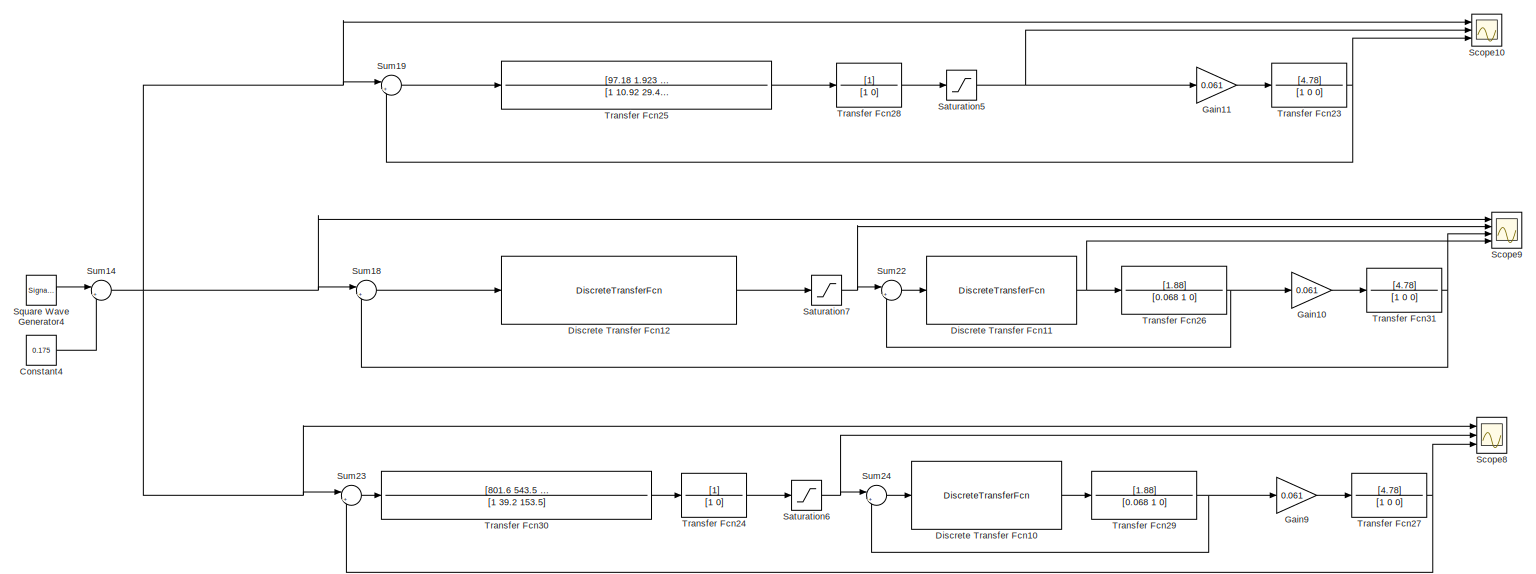
[diagram: root canvas - part 1/5, full width, top band]
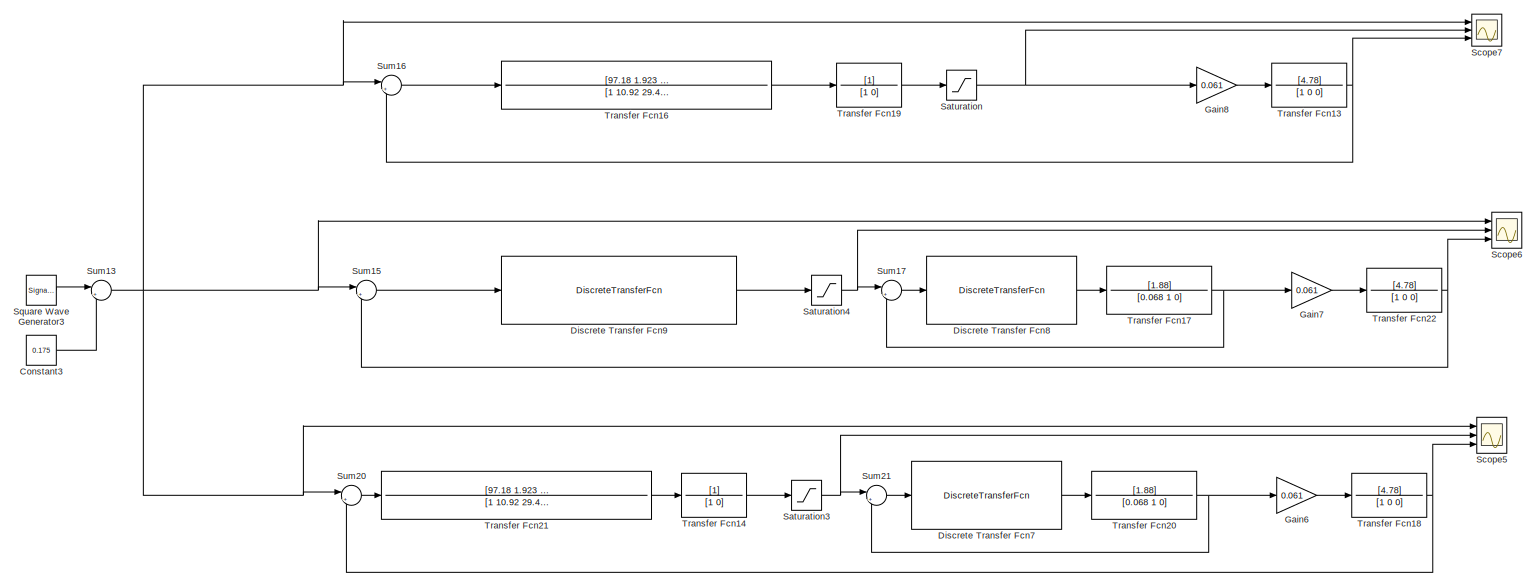
[diagram: root canvas - part 2/5, full width, middle band]
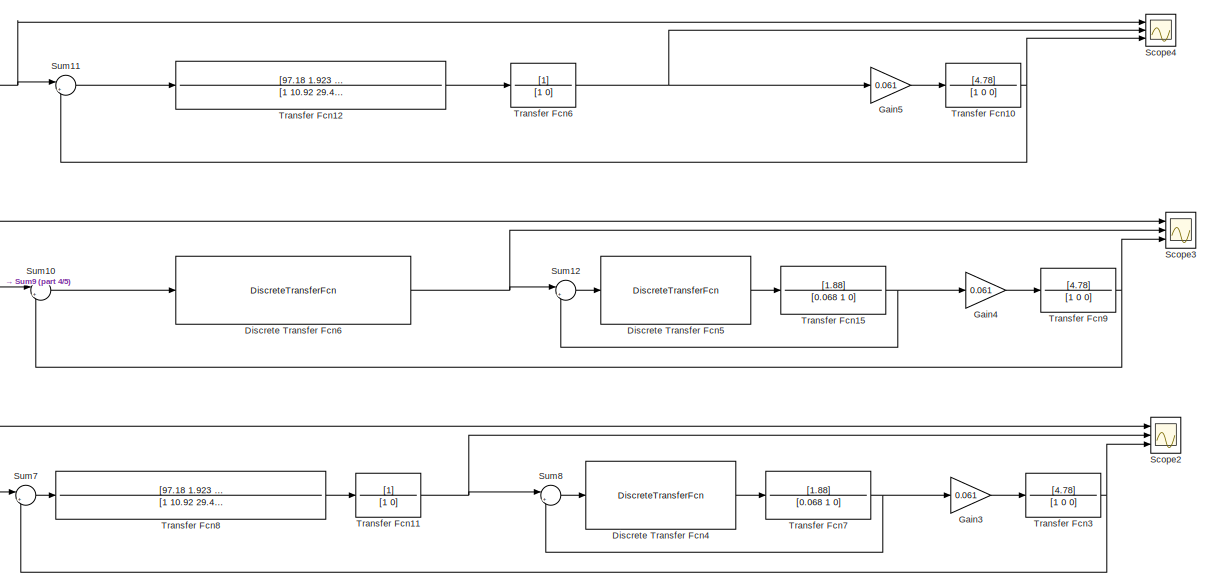
[diagram: root canvas - part 3/5, bottom center region]
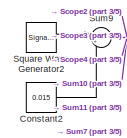
[diagram: root canvas - part 4/5, bottom left region]
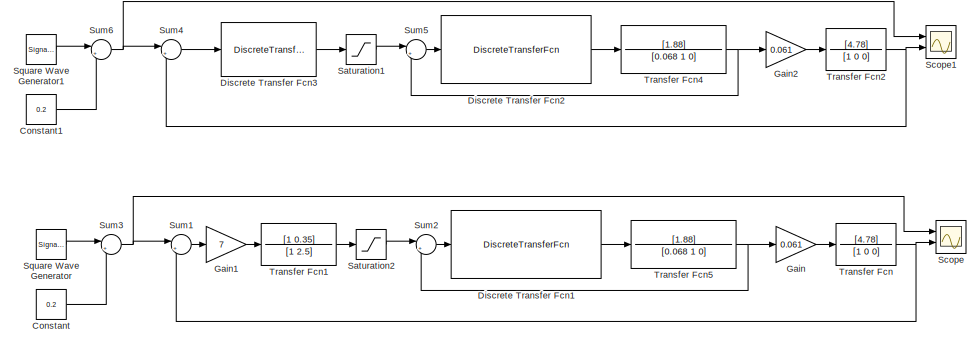
[diagram: root canvas - part 5/5, bottom center region]
MODEL slx_eb21d4040b31
KIND model
CONFIG AbsTol = auto
CONFIG EnableMultiTasking = off
CONFIG FixedStep = auto
CONFIG MaxStep = auto
CONFIG MinStep = auto
CONFIG RelTol = 1e-3
CONFIG SampleTimeConstraint = Unconstrained
CONFIG Solver = VariableStepAuto
CONFIG SolverName = VariableStepAuto
CONFIG StartTime = 0.0
CONFIG StopTime = 100
BLOCK [Constant] Constant
  Value = 0.2
BLOCK [Constant] Constant1
  Value = 0.2
BLOCK [Constant] Constant2
  Value = 0.015
BLOCK [Constant] Constant3
  Value = 0.175
BLOCK [Constant] Constant4
  Value = 0.175
BLOCK [DiscreteTransferFcn] Discrete Transfer Fcn1
  Denominator = [1 -0.1333 0.03625]
  InputPortMap = u0
  Numerator = [2.619 1.281 -1.255]
  Ports = [1, 1]
  SampleTime = 0.029012
BLOCK [DiscreteTransferFcn] Discrete Transfer Fcn10
  Denominator = [1 -0.1333 0.03625]
  InputPortMap = u0
  Numerator = [2.619 1.281 -1.255]
  Ports = [1, 1]
  SampleTime = 0.029012
BLOCK [DiscreteTransferFcn] Discrete Transfer Fcn11
  Denominator = [1 -0.1333 0.03625]
  InputPortMap = u0
  Numerator = [2.619 1.281 -1.255]
  Ports = [1, 1]
  SampleTime = 0.029012
BLOCK [DiscreteTransferFcn] Discrete Transfer Fcn12
  Denominator = [1 -2.301 1.754 -0.4527]
  InputPortMap = u0
  Numerator = [33.86 -32.81 -33.85 32.82]
  Ports = [1, 1]
  SampleTime = 0.029012
BLOCK [DiscreteTransferFcn] Discrete Transfer Fcn2
  Denominator = [1 -0.1333 0.03625]
  InputPortMap = u0
  Numerator = [2.619 1.281 -1.255]
  Ports = [1, 1]
  SampleTime = 0.029012
BLOCK [DiscreteTransferFcn] Discrete Transfer Fcn3
  Denominator = [1 -0.6634]
  InputPortMap = u0
  Numerator = [5.987 -5.657]
  Ports = [1, 1]
  SampleTime = 0.16186
BLOCK [DiscreteTransferFcn] Discrete Transfer Fcn4
  Denominator = [1 -0.1333 0.03625]
  InputPortMap = u0
  Numerator = [2.619 1.281 -1.255]
  Ports = [1, 1]
  SampleTime = 0.029012
BLOCK [DiscreteTransferFcn] Discrete Transfer Fcn5
  Denominator = [1 -0.1333 0.03625]
  InputPortMap = u0
  Numerator = [2.619 1.281 -1.255]
  Ports = [1, 1]
  SampleTime = 0.029012
BLOCK [DiscreteTransferFcn] Discrete Transfer Fcn6
  Denominator = [1 -2.707 2.435 -0.728]
  InputPortMap = u0
  Numerator = [1.211 -1.21 -1.211 1.21]
  Ports = [1, 1]
  SampleTime = 0.029012
BLOCK [DiscreteTransferFcn] Discrete Transfer Fcn7
  Denominator = [1 -0.1333 0.03625]
  InputPortMap = u0
  Numerator = [2.619 1.281 -1.255]
  Ports = [1, 1]
  SampleTime = 0.029012
BLOCK [DiscreteTransferFcn] Discrete Transfer Fcn8
  Denominator = [1 -0.1333 0.03625]
  InputPortMap = u0
  Numerator = [2.619 1.281 -1.255]
  Ports = [1, 1]
  SampleTime = 0.029012
BLOCK [DiscreteTransferFcn] Discrete Transfer Fcn9
  Denominator = [1 -2.707 2.435 -0.728]
  InputPortMap = u0
  Numerator = [1.211 -1.21 -1.211 1.21]
  Ports = [1, 1]
  SampleTime = 0.029012
BLOCK [Gain] Gain
  Gain = 0.061
  OutDataTypeStr = Inherit: Inherit via internal rule
  ParamDataTypeStr = Inherit: Inherit via internal rule
  SaturateOnIntegerOverflow = off
BLOCK [Gain] Gain1
  Gain = 7
  OutDataTypeStr = Inherit: Inherit via internal rule
  ParamDataTypeStr = Inherit: Inherit via internal rule
  SaturateOnIntegerOverflow = off
BLOCK [Gain] Gain10
  Gain = 0.061
  OutDataTypeStr = Inherit: Inherit via internal rule
  ParamDataTypeStr = Inherit: Inherit via internal rule
  SaturateOnIntegerOverflow = off
BLOCK [Gain] Gain11
  Gain = 0.061
  OutDataTypeStr = Inherit: Inherit via internal rule
  ParamDataTypeStr = Inherit: Inherit via internal rule
  SaturateOnIntegerOverflow = off
BLOCK [Gain] Gain2
  Gain = 0.061
  OutDataTypeStr = Inherit: Inherit via internal rule
  ParamDataTypeStr = Inherit: Inherit via internal rule
  SaturateOnIntegerOverflow = off
BLOCK [Gain] Gain3
  Gain = 0.061
  OutDataTypeStr = Inherit: Inherit via internal rule
  ParamDataTypeStr = Inherit: Inherit via internal rule
  SaturateOnIntegerOverflow = off
BLOCK [Gain] Gain4
  Gain = 0.061
  OutDataTypeStr = Inherit: Inherit via internal rule
  ParamDataTypeStr = Inherit: Inherit via internal rule
  SaturateOnIntegerOverflow = off
BLOCK [Gain] Gain5
  Gain = 0.061
  OutDataTypeStr = Inherit: Inherit via internal rule
  ParamDataTypeStr = Inherit: Inherit via internal rule
  SaturateOnIntegerOverflow = off
BLOCK [Gain] Gain6
  Gain = 0.061
  OutDataTypeStr = Inherit: Inherit via internal rule
  ParamDataTypeStr = Inherit: Inherit via internal rule
  SaturateOnIntegerOverflow = off
BLOCK [Gain] Gain7
  Gain = 0.061
  OutDataTypeStr = Inherit: Inherit via internal rule
  ParamDataTypeStr = Inherit: Inherit via internal rule
  SaturateOnIntegerOverflow = off
BLOCK [Gain] Gain8
  Gain = 0.061
  OutDataTypeStr = Inherit: Inherit via internal rule
  ParamDataTypeStr = Inherit: Inherit via internal rule
  SaturateOnIntegerOverflow = off
BLOCK [Gain] Gain9
  Gain = 0.061
  OutDataTypeStr = Inherit: Inherit via internal rule
  ParamDataTypeStr = Inherit: Inherit via internal rule
  SaturateOnIntegerOverflow = off
BLOCK [Saturate] Saturation
  InputPortMap = u0
  LowerLimit = -0.7
  Ports = [1, 1]
  UpperLimit = 0.7
BLOCK [Saturate] Saturation1
  InputPortMap = u0
  LowerLimit = -0.7
  Ports = [1, 1]
  UpperLimit = 0.7
BLOCK [Saturate] Saturation2
  InputPortMap = u0
  LowerLimit = -0.7
  Ports = [1, 1]
  UpperLimit = 0.7
BLOCK [Saturate] Saturation3
  InputPortMap = u0
  LowerLimit = -0.7
  Ports = [1, 1]
  UpperLimit = 0.7
BLOCK [Saturate] Saturation4
  InputPortMap = u0
  LowerLimit = -0.7
  Ports = [1, 1]
  UpperLimit = 0.7
BLOCK [Saturate] Saturation5
  InputPortMap = u0
  LowerLimit = -0.7
  Ports = [1, 1]
  UpperLimit = 0.7
BLOCK [Saturate] Saturation6
  InputPortMap = u0
  LowerLimit = -0.7
  Ports = [1, 1]
  UpperLimit = 0.7
BLOCK [Saturate] Saturation7
  InputPortMap = u0
  LowerLimit = -0.7
  Ports = [1, 1]
  UpperLimit = 0.7
BLOCK [Scope] Scope
  Floating = off
  NumInputPorts = 2
  Ports = [2]
  ScopeSpecificationString = Simulink.scopes.TimeScopeBlockCfg('CurrentConfiguration', extmgr.ConfigurationSet(extmgr.Configuration('Core','General UI',true),extmgr.Configuration('Core','Source UI',true),extmgr.Configuration('Sources','WiredSimulink',true),extmgr.Configuration('Visuals','Time Domain',true,'SerializedDisplays',{struct('MinYLimReal','-0.03611','MaxYLimReal','0.32496','YLabelReal','','MinYLimMag','0.00000','MaxY...<+1394ch>
BLOCK [Scope] Scope1
  Floating = off
  NumInputPorts = 2
  Ports = [2]
  ScopeSpecificationString = Simulink.scopes.TimeScopeBlockCfg('CurrentConfiguration', extmgr.ConfigurationSet(extmgr.Configuration('Core','General UI',true),extmgr.Configuration('Core','Source UI',true),extmgr.Configuration('Sources','WiredSimulink',true,'DataLoggingVariableName','ScopeData1'),extmgr.Configuration('Visuals','Time Domain',true,'SerializedDisplays',{struct('MinYLimReal','-0.03699','MaxYLimReal','0.33295','YLab...<+1408ch>
BLOCK [Scope] Scope10
  Floating = off
  NumInputPorts = 3
  Ports = [3]
  ScopeSpecificationString = Simulink.scopes.TimeScopeBlockCfg('CurrentConfiguration', extmgr.ConfigurationSet(extmgr.Configuration('Core','General UI',true),extmgr.Configuration('Core','Source UI',true),extmgr.Configuration('Sources','WiredSimulink',true,'DataLoggingVariableName','ScopeData8'),extmgr.Configuration('Visuals','Time Domain',true,'SerializedDisplays',{struct('MinYLimReal','-0.875','MaxYLimReal','0.875','YLabelRe...<+1456ch>
BLOCK [Scope] Scope2
  Floating = off
  NumInputPorts = 3
  Ports = [3]
  ScopeSpecificationString = Simulink.scopes.TimeScopeBlockCfg('CurrentConfiguration', extmgr.ConfigurationSet(extmgr.Configuration('Core','General UI',true),extmgr.Configuration('Core','Source UI',true),extmgr.Configuration('Sources','WiredSimulink',true,'DataLoggingVariableName','ScopeData2'),extmgr.Configuration('Visuals','Time Domain',true,'SerializedDisplays',{struct('MinYLimReal','-0.54499','MaxYLimReal','0.84627','YLab...<+1495ch>
BLOCK [Scope] Scope3
  Floating = off
  NumInputPorts = 3
  Ports = [3]
  ScopeSpecificationString = Simulink.scopes.TimeScopeBlockCfg('CurrentConfiguration', extmgr.ConfigurationSet(extmgr.Configuration('Core','General UI',true),extmgr.Configuration('Core','Source UI',true),extmgr.Configuration('Sources','WiredSimulink',true,'DataLoggingVariableName','ScopeData3'),extmgr.Configuration('Visuals','Time Domain',true,'SerializedDisplays',{struct('MinYLimReal','-0.24764','MaxYLimReal','0.24764','YLab...<+1478ch>
BLOCK [Scope] Scope4
  Floating = off
  NumInputPorts = 3
  Ports = [3]
  ScopeSpecificationString = Simulink.scopes.TimeScopeBlockCfg('CurrentConfiguration', extmgr.ConfigurationSet(extmgr.Configuration('Core','General UI',true),extmgr.Configuration('Core','Source UI',true),extmgr.Configuration('Sources','WiredSimulink',true,'DataLoggingVariableName','ScopeData4'),extmgr.Configuration('Visuals','Time Domain',true,'SerializedDisplays',{struct('MinYLimReal','-0.24452','MaxYLimReal','0.24434','YLab...<+1470ch>
BLOCK [Scope] Scope5
  Floating = off
  NumInputPorts = 3
  Ports = [3]
  ScopeSpecificationString = Simulink.scopes.TimeScopeBlockCfg('CurrentConfiguration', extmgr.ConfigurationSet(extmgr.Configuration('Core','General UI',true),extmgr.Configuration('Core','Source UI',true),extmgr.Configuration('Sources','WiredSimulink',true,'DataLoggingVariableName','ScopeData5'),extmgr.Configuration('Visuals','Time Domain',true,'SerializedDisplays',{struct('MinYLimReal','-0.54499','MaxYLimReal','0.84627','YLab...<+1495ch>
BLOCK [Scope] Scope6
  Floating = off
  NumInputPorts = 3
  Ports = [3]
  ScopeSpecificationString = Simulink.scopes.TimeScopeBlockCfg('CurrentConfiguration', extmgr.ConfigurationSet(extmgr.Configuration('Core','General UI',true),extmgr.Configuration('Core','Source UI',true),extmgr.Configuration('Sources','WiredSimulink',true,'DataLoggingVariableName','ScopeData6'),extmgr.Configuration('Visuals','Time Domain',true,'SerializedDisplays',{struct('MinYLimReal','-1.2382','MaxYLimReal','1.23822','YLabe...<+1467ch>
BLOCK [Scope] Scope7
  Floating = off
  NumInputPorts = 3
  Ports = [3]
  ScopeSpecificationString = Simulink.scopes.TimeScopeBlockCfg('CurrentConfiguration', extmgr.ConfigurationSet(extmgr.Configuration('Core','General UI',true),extmgr.Configuration('Core','Source UI',true),extmgr.Configuration('Sources','WiredSimulink',true,'DataLoggingVariableName','ScopeData7'),extmgr.Configuration('Visuals','Time Domain',true,'SerializedDisplays',{struct('MinYLimReal','-0.875','MaxYLimReal','0.875','YLabelRe...<+1456ch>
BLOCK [Scope] Scope8
  Floating = off
  NumInputPorts = 3
  Ports = [3]
  ScopeSpecificationString = Simulink.scopes.TimeScopeBlockCfg('CurrentConfiguration', extmgr.ConfigurationSet(extmgr.Configuration('Core','General UI',true),extmgr.Configuration('Core','Source UI',true),extmgr.Configuration('Sources','WiredSimulink',true,'DataLoggingVariableName','ScopeData9'),extmgr.Configuration('Visuals','Time Domain',true,'SerializedDisplays',{struct('MinYLimReal','-0.875','MaxYLimReal','0.875','YLabelRe...<+1482ch>
BLOCK [Scope] Scope9
  Floating = off
  NumInputPorts = 4
  Ports = [4]
  ScopeSpecificationString = Simulink.scopes.TimeScopeBlockCfg('CurrentConfiguration', extmgr.ConfigurationSet(extmgr.Configuration('Core','General UI',true),extmgr.Configuration('Core','Source UI',true),extmgr.Configuration('Sources','WiredSimulink',true,'DataLoggingVariableName','ScopeData10'),extmgr.Configuration('Visuals','Time Domain',true,'SerializedDisplays',{struct('MinYLimReal','-0.76936','MaxYLimReal','1.48896','YLa...<+1496ch>
BLOCK [SignalGenerator] Square Wave Generator
  Amplitude = 0.05
  Frequency = 0.2
  Ports = [0, 1]
  Units = rad/sec
  WaveForm = square
BLOCK [SignalGenerator] Square Wave Generator1
  Amplitude = 0.05
  Frequency = 0.2
  Ports = [0, 1]
  Units = rad/sec
  WaveForm = square
BLOCK [SignalGenerator] Square Wave Generator2
  Amplitude = 0.015
  Frequency = 0.2
  Ports = [0, 1]
  Units = rad/sec
  WaveForm = square
BLOCK [SignalGenerator] Square Wave Generator3
  Amplitude = 0.075
  Frequency = 0.2
  Ports = [0, 1]
  Units = rad/sec
  WaveForm = square
BLOCK [SignalGenerator] Square Wave Generator4
  Amplitude = 0.075
  Frequency = 0.2
  Ports = [0, 1]
  Units = rad/sec
  WaveForm = square
BLOCK [Sum] Sum1
  IconShape = round
  InputSameDT = off
  Inputs = |+-
  OutDataTypeStr = Inherit: Inherit via internal rule
  Ports = [2, 1]
  SaturateOnIntegerOverflow = off
BLOCK [Sum] Sum10
  IconShape = round
  InputSameDT = off
  Inputs = |+-
  OutDataTypeStr = Inherit: Inherit via internal rule
  Ports = [2, 1]
  SaturateOnIntegerOverflow = off
BLOCK [Sum] Sum11
  IconShape = round
  InputSameDT = off
  Inputs = |+-
  OutDataTypeStr = Inherit: Inherit via internal rule
  Ports = [2, 1]
  SaturateOnIntegerOverflow = off
BLOCK [Sum] Sum12
  IconShape = round
  InputSameDT = off
  Inputs = |+-
  OutDataTypeStr = Inherit: Inherit via internal rule
  Ports = [2, 1]
  SaturateOnIntegerOverflow = off
BLOCK [Sum] Sum13
  IconShape = round
  InputSameDT = off
  Inputs = |++
  OutDataTypeStr = Inherit: Inherit via internal rule
  Ports = [2, 1]
  SaturateOnIntegerOverflow = off
BLOCK [Sum] Sum14
  IconShape = round
  InputSameDT = off
  Inputs = |++
  OutDataTypeStr = Inherit: Inherit via internal rule
  Ports = [2, 1]
  SaturateOnIntegerOverflow = off
BLOCK [Sum] Sum15
  IconShape = round
  InputSameDT = off
  Inputs = |+-
  OutDataTypeStr = Inherit: Inherit via internal rule
  Ports = [2, 1]
  SaturateOnIntegerOverflow = off
BLOCK [Sum] Sum16
  IconShape = round
  InputSameDT = off
  Inputs = |+-
  OutDataTypeStr = Inherit: Inherit via internal rule
  Ports = [2, 1]
  SaturateOnIntegerOverflow = off
BLOCK [Sum] Sum17
  IconShape = round
  InputSameDT = off
  Inputs = |+-
  OutDataTypeStr = Inherit: Inherit via internal rule
  Ports = [2, 1]
  SaturateOnIntegerOverflow = off
BLOCK [Sum] Sum18
  IconShape = round
  InputSameDT = off
  Inputs = |+-
  OutDataTypeStr = Inherit: Inherit via internal rule
  Ports = [2, 1]
  SaturateOnIntegerOverflow = off
BLOCK [Sum] Sum19
  IconShape = round
  InputSameDT = off
  Inputs = |+-
  OutDataTypeStr = Inherit: Inherit via internal rule
  Ports = [2, 1]
  SaturateOnIntegerOverflow = off
BLOCK [Sum] Sum2
  IconShape = round
  InputSameDT = off
  Inputs = |+-
  OutDataTypeStr = Inherit: Inherit via internal rule
  Ports = [2, 1]
  SaturateOnIntegerOverflow = off
BLOCK [Sum] Sum20
  IconShape = round
  InputSameDT = off
  Inputs = |+-
  OutDataTypeStr = Inherit: Inherit via internal rule
  Ports = [2, 1]
  SaturateOnIntegerOverflow = off
BLOCK [Sum] Sum21
  IconShape = round
  InputSameDT = off
  Inputs = |+-
  OutDataTypeStr = Inherit: Inherit via internal rule
  Ports = [2, 1]
  SaturateOnIntegerOverflow = off
BLOCK [Sum] Sum22
  IconShape = round
  InputSameDT = off
  Inputs = |+-
  OutDataTypeStr = Inherit: Inherit via internal rule
  Ports = [2, 1]
  SaturateOnIntegerOverflow = off
BLOCK [Sum] Sum23
  IconShape = round
  InputSameDT = off
  Inputs = |+-
  OutDataTypeStr = Inherit: Inherit via internal rule
  Ports = [2, 1]
  SaturateOnIntegerOverflow = off
BLOCK [Sum] Sum24
  IconShape = round
  InputSameDT = off
  Inputs = |+-
  OutDataTypeStr = Inherit: Inherit via internal rule
  Ports = [2, 1]
  SaturateOnIntegerOverflow = off
BLOCK [Sum] Sum3
  IconShape = round
  InputSameDT = off
  Inputs = |++
  OutDataTypeStr = Inherit: Inherit via internal rule
  Ports = [2, 1]
  SaturateOnIntegerOverflow = off
BLOCK [Sum] Sum4
  IconShape = round
  InputSameDT = off
  Inputs = |+-
  OutDataTypeStr = Inherit: Inherit via internal rule
  Ports = [2, 1]
  SaturateOnIntegerOverflow = off
BLOCK [Sum] Sum5
  IconShape = round
  InputSameDT = off
  Inputs = |+-
  OutDataTypeStr = Inherit: Inherit via internal rule
  Ports = [2, 1]
  SaturateOnIntegerOverflow = off
BLOCK [Sum] Sum6
  IconShape = round
  InputSameDT = off
  Inputs = |++
  OutDataTypeStr = Inherit: Inherit via internal rule
  Ports = [2, 1]
  SaturateOnIntegerOverflow = off
BLOCK [Sum] Sum7
  IconShape = round
  InputSameDT = off
  Inputs = |+-
  OutDataTypeStr = Inherit: Inherit via internal rule
  Ports = [2, 1]
  SaturateOnIntegerOverflow = off
BLOCK [Sum] Sum8
  IconShape = round
  InputSameDT = off
  Inputs = |+-
  OutDataTypeStr = Inherit: Inherit via internal rule
  Ports = [2, 1]
  SaturateOnIntegerOverflow = off
BLOCK [Sum] Sum9
  IconShape = round
  InputSameDT = off
  Inputs = |++
  OutDataTypeStr = Inherit: Inherit via internal rule
  Ports = [2, 1]
  SaturateOnIntegerOverflow = off
BLOCK [TransferFcn] Transfer Fcn
  Denominator = [1 0 0]
  Numerator = [4.78]
BLOCK [TransferFcn] Transfer Fcn1
  Denominator = [1 2.5]
  Numerator = [1 0.35]
BLOCK [TransferFcn] Transfer Fcn10
  Denominator = [1 0 0]
  Numerator = [4.78]
BLOCK [TransferFcn] Transfer Fcn11
  Denominator = [1 0]
BLOCK [TransferFcn] Transfer Fcn12
  Denominator = [1 10.92 29.42]
  Numerator = [97.18 1.923 0.01903]
BLOCK [TransferFcn] Transfer Fcn13
  Denominator = [1 0 0]
  Numerator = [4.78]
BLOCK [TransferFcn] Transfer Fcn14
  Denominator = [1 0]
BLOCK [TransferFcn] Transfer Fcn15
  Denominator = [0.068 1 0]
  Numerator = [1.88]
BLOCK [TransferFcn] Transfer Fcn16
  Denominator = [1 10.92 29.42]
  Numerator = [97.18 1.923 0.01903]
BLOCK [TransferFcn] Transfer Fcn17
  Denominator = [0.068 1 0]
  Numerator = [1.88]
BLOCK [TransferFcn] Transfer Fcn18
  Denominator = [1 0 0]
  Numerator = [4.78]
BLOCK [TransferFcn] Transfer Fcn19
  Denominator = [1 0]
BLOCK [TransferFcn] Transfer Fcn2
  Denominator = [1 0 0]
  Numerator = [4.78]
BLOCK [TransferFcn] Transfer Fcn20
  Denominator = [0.068 1 0]
  Numerator = [1.88]
BLOCK [TransferFcn] Transfer Fcn21
  Denominator = [1 10.92 29.42]
  Numerator = [97.18 1.923 0.01903]
BLOCK [TransferFcn] Transfer Fcn22
  Denominator = [1 0 0]
  Numerator = [4.78]
BLOCK [TransferFcn] Transfer Fcn23
  Denominator = [1 0 0]
  Numerator = [4.78]
BLOCK [TransferFcn] Transfer Fcn24
  Denominator = [1 0]
BLOCK [TransferFcn] Transfer Fcn25
  Denominator = [1 10.92 29.42]
  Numerator = [97.18 1.923 0.01903]
BLOCK [TransferFcn] Transfer Fcn26
  Denominator = [0.068 1 0]
  Numerator = [1.88]
BLOCK [TransferFcn] Transfer Fcn27
  Denominator = [1 0 0]
  Numerator = [4.78]
BLOCK [TransferFcn] Transfer Fcn28
  Denominator = [1 0]
BLOCK [TransferFcn] Transfer Fcn29
  Denominator = [0.068 1 0]
  Numerator = [1.88]
BLOCK [TransferFcn] Transfer Fcn3
  Denominator = [1 0 0]
  Numerator = [4.78]
BLOCK [TransferFcn] Transfer Fcn30
  Denominator = [1 39.2 153.5]
  Numerator = [801.6 543.5 142.7]
BLOCK [TransferFcn] Transfer Fcn31
  Denominator = [1 0 0]
  Numerator = [4.78]
BLOCK [TransferFcn] Transfer Fcn4
  Denominator = [0.068 1 0]
  Numerator = [1.88]
BLOCK [TransferFcn] Transfer Fcn5
  Denominator = [0.068 1 0]
  Numerator = [1.88]
BLOCK [TransferFcn] Transfer Fcn6
  Denominator = [1 0]
BLOCK [TransferFcn] Transfer Fcn7
  Denominator = [0.068 1 0]
  Numerator = [1.88]
BLOCK [TransferFcn] Transfer Fcn8
  Denominator = [1 10.92 29.42]
  Numerator = [97.18 1.923 0.01903]
BLOCK [TransferFcn] Transfer Fcn9
  Denominator = [1 0 0]
  Numerator = [4.78]
LINE Constant1:1 -> Sum6:2
LINE Constant2:1 -> Sum9:2
LINE Constant3:1 -> Sum13:2
LINE Constant4:1 -> Sum14:2
LINE Constant:1 -> Sum3:2
LINE Discrete Transfer Fcn10:1 -> Transfer Fcn29:1
NET Discrete Transfer Fcn11:1 -> Scope9:4, Transfer Fcn26:1
LINE Discrete Transfer Fcn12:1 -> Saturation7:1
LINE Discrete Transfer Fcn1:1 -> Transfer Fcn5:1
LINE Discrete Transfer Fcn2:1 -> Transfer Fcn4:1
LINE Discrete Transfer Fcn3:1 -> Saturation1:1
LINE Discrete Transfer Fcn4:1 -> Transfer Fcn7:1
LINE Discrete Transfer Fcn5:1 -> Transfer Fcn15:1
NET Discrete Transfer Fcn6:1 -> Scope3:2, Sum12:1
LINE Discrete Transfer Fcn7:1 -> Transfer Fcn20:1
LINE Discrete Transfer Fcn8:1 -> Transfer Fcn17:1
LINE Discrete Transfer Fcn9:1 -> Saturation4:1
LINE Gain10:1 -> Transfer Fcn31:1
LINE Gain11:1 -> Transfer Fcn23:1
LINE Gain1:1 -> Transfer Fcn1:1
LINE Gain2:1 -> Transfer Fcn2:1
LINE Gain3:1 -> Transfer Fcn3:1
LINE Gain4:1 -> Transfer Fcn9:1
LINE Gain5:1 -> Transfer Fcn10:1
LINE Gain6:1 -> Transfer Fcn18:1
LINE Gain7:1 -> Transfer Fcn22:1
LINE Gain8:1 -> Transfer Fcn13:1
LINE Gain9:1 -> Transfer Fcn27:1
LINE Gain:1 -> Transfer Fcn:1
LINE Saturation1:1 -> Sum5:1
LINE Saturation2:1 -> Sum2:1
NET Saturation3:1 -> Scope5:2, Sum21:1
NET Saturation4:1 -> Scope6:2, Sum17:1
NET Saturation5:1 -> Gain11:1, Scope10:2
NET Saturation6:1 -> Scope8:2, Sum24:1
NET Saturation7:1 -> Scope9:2, Sum22:1
NET Saturation:1 -> Gain8:1, Scope7:2
LINE Square Wave Generator1:1 -> Sum6:1
LINE Square Wave Generator2:1 -> Sum9:1
LINE Square Wave Generator3:1 -> Sum13:1
LINE Square Wave Generator4:1 -> Sum14:1
LINE Square Wave Generator:1 -> Sum3:1
LINE Sum10:1 -> Discrete Transfer Fcn6:1
LINE Sum11:1 -> Transfer Fcn12:1
LINE Sum12:1 -> Discrete Transfer Fcn5:1
NET Sum13:1 -> Scope5:1, Scope6:1, Scope7:1, Sum15:1, Sum16:1, Sum20:1
NET Sum14:1 -> Scope10:1, Scope8:1, Scope9:1, Sum18:1, Sum19:1, Sum23:1
LINE Sum15:1 -> Discrete Transfer Fcn9:1
LINE Sum16:1 -> Transfer Fcn16:1
LINE Sum17:1 -> Discrete Transfer Fcn8:1
LINE Sum18:1 -> Discrete Transfer Fcn12:1
LINE Sum19:1 -> Transfer Fcn25:1
LINE Sum1:1 -> Gain1:1
LINE Sum20:1 -> Transfer Fcn21:1
LINE Sum21:1 -> Discrete Transfer Fcn7:1
LINE Sum22:1 -> Discrete Transfer Fcn11:1
LINE Sum23:1 -> Transfer Fcn30:1
LINE Sum24:1 -> Discrete Transfer Fcn10:1
LINE Sum2:1 -> Discrete Transfer Fcn1:1
NET Sum3:1 -> Scope:1, Sum1:1
LINE Sum4:1 -> Discrete Transfer Fcn3:1
LINE Sum5:1 -> Discrete Transfer Fcn2:1
NET Sum6:1 -> Scope1:1, Sum4:1
LINE Sum7:1 -> Transfer Fcn8:1
LINE Sum8:1 -> Discrete Transfer Fcn4:1
NET Sum9:1 -> Scope2:1, Scope3:1, Scope4:1, Sum10:1, Sum11:1, Sum7:1
NET Transfer Fcn10:1 -> Scope4:3, Sum11:2
NET Transfer Fcn11:1 -> Scope2:2, Sum8:1
LINE Transfer Fcn12:1 -> Transfer Fcn6:1
NET Transfer Fcn13:1 -> Scope7:3, Sum16:2
LINE Transfer Fcn14:1 -> Saturation3:1
NET Transfer Fcn15:1 -> Gain4:1, Sum12:2
LINE Transfer Fcn16:1 -> Transfer Fcn19:1
NET Transfer Fcn17:1 -> Gain7:1, Sum17:2
NET Transfer Fcn18:1 -> Scope5:3, Sum20:2
LINE Transfer Fcn19:1 -> Saturation:1
LINE Transfer Fcn1:1 -> Saturation2:1
NET Transfer Fcn20:1 -> Gain6:1, Sum21:2
LINE Transfer Fcn21:1 -> Transfer Fcn14:1
NET Transfer Fcn22:1 -> Scope6:3, Sum15:2
NET Transfer Fcn23:1 -> Scope10:3, Sum19:2
LINE Transfer Fcn24:1 -> Saturation6:1
LINE Transfer Fcn25:1 -> Transfer Fcn28:1
NET Transfer Fcn26:1 -> Gain10:1, Sum22:2
NET Transfer Fcn27:1 -> Scope8:3, Sum23:2
LINE Transfer Fcn28:1 -> Saturation5:1
NET Transfer Fcn29:1 -> Gain9:1, Sum24:2
NET Transfer Fcn2:1 -> Scope1:2, Sum4:2
LINE Transfer Fcn30:1 -> Transfer Fcn24:1
NET Transfer Fcn31:1 -> Scope9:3, Sum18:2
NET Transfer Fcn3:1 -> Scope2:3, Sum7:2
NET Transfer Fcn4:1 -> Gain2:1, Sum5:2
NET Transfer Fcn5:1 -> Gain:1, Sum2:2
NET Transfer Fcn6:1 -> Gain5:1, Scope4:2
NET Transfer Fcn7:1 -> Gain3:1, Sum8:2
LINE Transfer Fcn8:1 -> Transfer Fcn11:1
NET Transfer Fcn9:1 -> Scope3:3, Sum10:2
NET Transfer Fcn:1 -> Scope:2, Sum1:2
note: NET lines group one-source signal fan-out (src -> all destinations, sorted); 1:1 wires keep LINE
